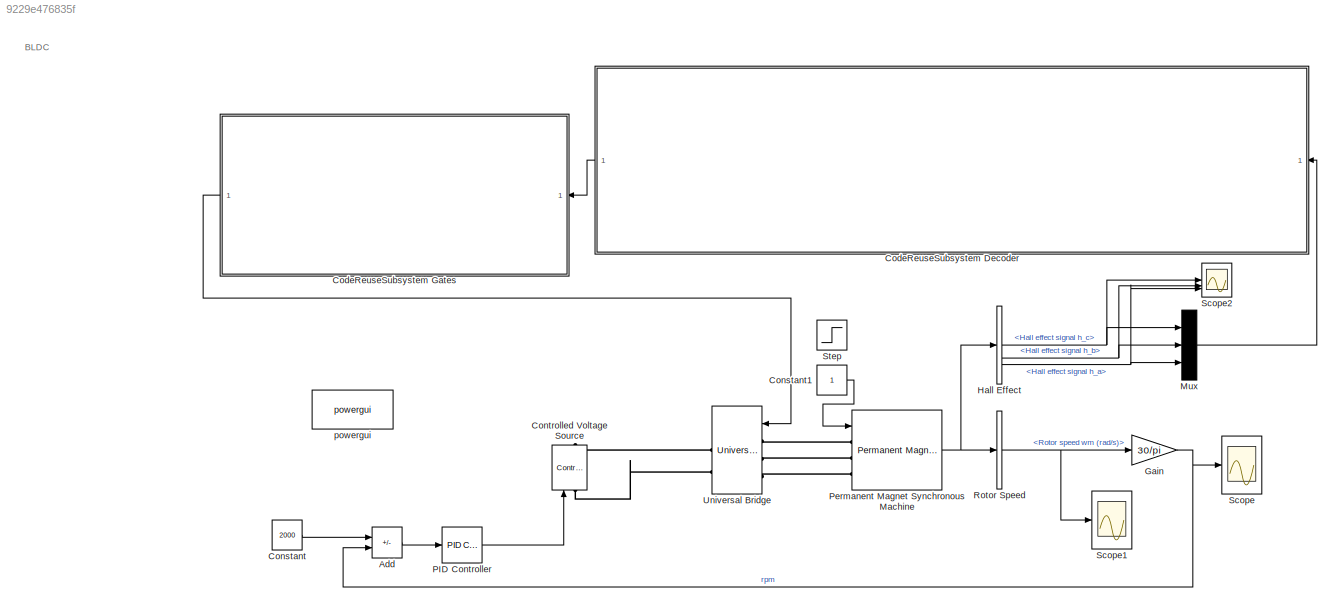
MODEL slx_9229e476835f
KIND model
CONFIG AbsTol = auto
CONFIG EnableMultiTasking = off
CONFIG FixedStep = auto
CONFIG MaxStep = auto
CONFIG MinStep = auto
CONFIG RelTol = 1e-3
CONFIG SampleTimeConstraint = Unconstrained
CONFIG SolverName = VariableStepAuto
CONFIG StartTime = 0.0
CONFIG StopTime = 1
BLOCK [Sum] Add
  IconShape = rectangular
  Inputs = +-
  NameLocation = top
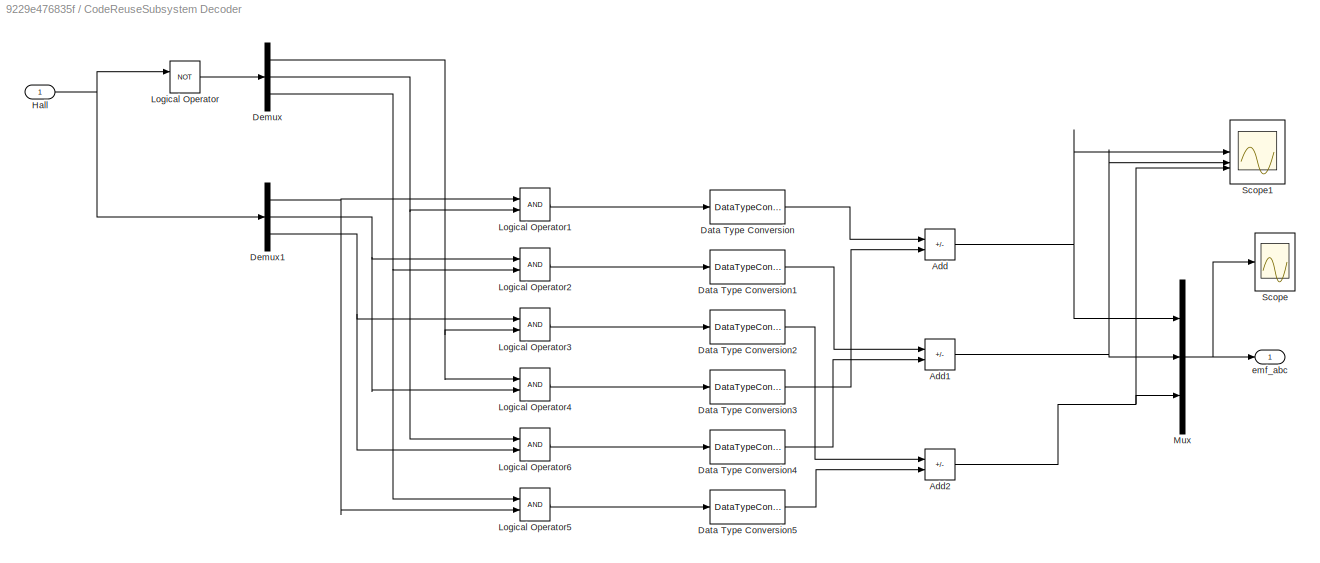
BLOCK [SubSystem] CodeReuseSubsystem Decoder
  NameLocation = top
  RTWFcnNameOpts = Use subsystem name
  RTWFileNameOpts = Use function name
  RTWSystemCode = Reusable function
  TreatAsAtomicUnit = on
BLOCK [Sum] CodeReuseSubsystem Decoder/Add
  IconShape = rectangular
  Inputs = +-
  NameLocation = top
BLOCK [Sum] CodeReuseSubsystem Decoder/Add1
  IconShape = rectangular
  Inputs = +-
BLOCK [Sum] CodeReuseSubsystem Decoder/Add2
  IconShape = rectangular
  Inputs = +-
BLOCK [DataTypeConversion] CodeReuseSubsystem Decoder/Data Type Conversion
  NameLocation = top
  RndMeth = Floor
  SaturateOnIntegerOverflow = off
BLOCK [DataTypeConversion] CodeReuseSubsystem Decoder/Data Type Conversion1
  RndMeth = Floor
  SaturateOnIntegerOverflow = off
BLOCK [DataTypeConversion] CodeReuseSubsystem Decoder/Data Type Conversion2
  RndMeth = Floor
  SaturateOnIntegerOverflow = off
BLOCK [DataTypeConversion] CodeReuseSubsystem Decoder/Data Type Conversion3
  RndMeth = Floor
  SaturateOnIntegerOverflow = off
BLOCK [DataTypeConversion] CodeReuseSubsystem Decoder/Data Type Conversion4
  RndMeth = Floor
  SaturateOnIntegerOverflow = off
BLOCK [DataTypeConversion] CodeReuseSubsystem Decoder/Data Type Conversion5
  RndMeth = Floor
  SaturateOnIntegerOverflow = off
BLOCK [Demux] CodeReuseSubsystem Decoder/Demux
  Outputs = 3
BLOCK [Demux] CodeReuseSubsystem Decoder/Demux1
  Outputs = 3
BLOCK [Inport] CodeReuseSubsystem Decoder/Hall
BLOCK [Logic] CodeReuseSubsystem Decoder/Logical Operator
  AllPortsSameDT = off
  Operator = NOT
  OutDataTypeStr = boolean
BLOCK [Logic] CodeReuseSubsystem Decoder/Logical Operator1
  AllPortsSameDT = off
  NameLocation = top
  OutDataTypeStr = boolean
BLOCK [Logic] CodeReuseSubsystem Decoder/Logical Operator2
  AllPortsSameDT = off
  OutDataTypeStr = boolean
BLOCK [Logic] CodeReuseSubsystem Decoder/Logical Operator3
  AllPortsSameDT = off
  OutDataTypeStr = boolean
BLOCK [Logic] CodeReuseSubsystem Decoder/Logical Operator4
  AllPortsSameDT = off
  OutDataTypeStr = boolean
BLOCK [Logic] CodeReuseSubsystem Decoder/Logical Operator5
  AllPortsSameDT = off
  OutDataTypeStr = boolean
BLOCK [Logic] CodeReuseSubsystem Decoder/Logical Operator6
  AllPortsSameDT = off
  OutDataTypeStr = boolean
BLOCK [Mux] CodeReuseSubsystem Decoder/Mux
  DisplayOption = bar
  Inputs = 3
BLOCK [Scope] CodeReuseSubsystem Decoder/Scope
  Floating = off
  NumInputPorts = 1
  ScopeSpecificationString = Simulink.scopes.TimeScopeBlockCfg('CurrentConfiguration', extmgr.ConfigurationSet(extmgr.Configuration('Core','General UI',true),extmgr.Configuration('Core','Source UI',true),extmgr.Configuration('Sources','WiredSimulink',true,'DataLoggingVariableName','ScopeData1'),extmgr.Configuration('Visuals','Time Domain',true,'SerializedDisplays',{struct('MinYLimReal','-1.25','MaxYLimReal','1.25','YLabelReal...<+2951ch>
BLOCK [Scope] CodeReuseSubsystem Decoder/Scope1
  Floating = off
  NumInputPorts = 3
  ScopeSpecificationString = Simulink.scopes.TimeScopeBlockCfg('CurrentConfiguration', extmgr.ConfigurationSet(extmgr.Configuration('Core','General UI',true),extmgr.Configuration('Core','Source UI',true),extmgr.Configuration('Sources','WiredSimulink',true,'DataLoggingVariableName','ScopeData2'),extmgr.Configuration('Visuals','Time Domain',true,'SerializedDisplays',{struct('MinYLimReal','-1.25','MaxYLimReal','1.25','YLabelReal...<+3027ch>
BLOCK [Outport] CodeReuseSubsystem Decoder/emf_abc
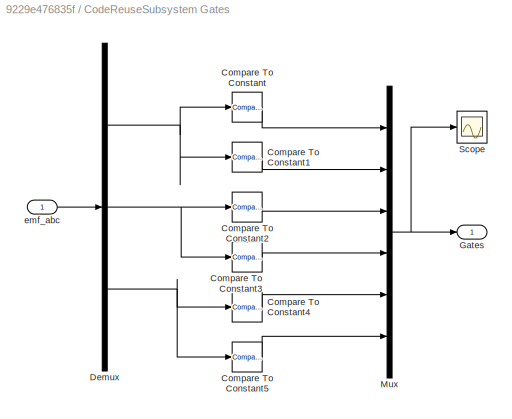
BLOCK [SubSystem] CodeReuseSubsystem Gates
  NameLocation = top
  RTWFcnNameOpts = Use subsystem name
  RTWFileNameOpts = Use function name
  RTWSystemCode = Reusable function
  TreatAsAtomicUnit = on
BLOCK [Reference] CodeReuseSubsystem Gates/Compare To Constant  REF=simulink/Logic and Bit
Operations/Compare
To Constant
  SourceBlock = simulink/Logic and Bit\nOperations/Compare\nTo Constant
  SourceType = Compare To Constant
BLOCK [Reference] CodeReuseSubsystem Gates/Compare To Constant1  REF=simulink/Logic and Bit
Operations/Compare
To Constant
  SourceBlock = simulink/Logic and Bit\nOperations/Compare\nTo Constant
  SourceType = Compare To Constant
BLOCK [Reference] CodeReuseSubsystem Gates/Compare To Constant2  REF=simulink/Logic and Bit
Operations/Compare
To Constant
  SourceBlock = simulink/Logic and Bit\nOperations/Compare\nTo Constant
  SourceType = Compare To Constant
BLOCK [Reference] CodeReuseSubsystem Gates/Compare To Constant3  REF=simulink/Logic and Bit
Operations/Compare
To Constant
  SourceBlock = simulink/Logic and Bit\nOperations/Compare\nTo Constant
  SourceType = Compare To Constant
BLOCK [Reference] CodeReuseSubsystem Gates/Compare To Constant4  REF=simulink/Logic and Bit
Operations/Compare
To Constant
  SourceBlock = simulink/Logic and Bit\nOperations/Compare\nTo Constant
  SourceType = Compare To Constant
BLOCK [Reference] CodeReuseSubsystem Gates/Compare To Constant5  REF=simulink/Logic and Bit
Operations/Compare
To Constant
  SourceBlock = simulink/Logic and Bit\nOperations/Compare\nTo Constant
  SourceType = Compare To Constant
BLOCK [Demux] CodeReuseSubsystem Gates/Demux
  Outputs = 3
BLOCK [Outport] CodeReuseSubsystem Gates/Gates
BLOCK [Mux] CodeReuseSubsystem Gates/Mux
  DisplayOption = bar
  Inputs = 6
BLOCK [Scope] CodeReuseSubsystem Gates/Scope
  Floating = off
  NumInputPorts = 1
  ScopeSpecificationString = Simulink.scopes.TimeScopeBlockCfg('CurrentConfiguration', extmgr.ConfigurationSet(extmgr.Configuration('Core','General UI',true),extmgr.Configuration('Core','Source UI',true),extmgr.Configuration('Sources','WiredSimulink',true,'DataLoggingVariableName','ScopeData3'),extmgr.Configuration('Visuals','Time Domain',true,'SerializedDisplays',{struct('MinYLimReal','-0.125','MaxYLimReal','1.125','YLabelRe...<+1602ch>
BLOCK [Inport] CodeReuseSubsystem Gates/emf_abc
BLOCK [Constant] Constant
  Value = 2000
BLOCK [Constant] Constant1
BLOCK [Reference] Controlled Voltage Source  REF=spsControlledVoltageSourceLib/Controlled Voltage Source
  LibrarySourceBlock = sps_lib/Sources/Controlled Voltage Source
  NameLocation = left
  SourceBlock = spsControlledVoltageSourceLib/Controlled Voltage Source
  SourceType = Controlled Voltage Source
BLOCK [Gain] Gain
  Gain = 30/pi
BLOCK [BusSelector] Hall Effect
  OutputSignals = Hall effect signal h_c,Hall effect signal h_b,Hall effect signal h_a
BLOCK [Mux] Mux
  DisplayOption = bar
  Inputs = 3
BLOCK [Reference] PID Controller  REF=slpidlib/PID Controller
  LibrarySourceBlock = simulink/Continuous/PID Controller
  NameLocation = top
  SourceBlock = slpidlib/PID Controller
  SourceType = PID 1dof
BLOCK [Reference] Permanent Magnet Synchronous Machine  REF=spsPermanentMagnetSynchronousMachineLib/Permanent Magnet
Synchronous Machine
  LibrarySourceBlock = sps_lib/Electrical Machines/Permanent Magnet\nSynchronous Machine
  SourceBlock = spsPermanentMagnetSynchronousMachineLib/Permanent Magnet\nSynchronous Machine
  SourceType = Permanent Magnet Synchronous Machine
BLOCK [BusSelector] Rotor Speed
  OutputSignals = Rotor speed wm (rad/s)
BLOCK [Scope] Scope
  Floating = off
  NumInputPorts = 1
  ScopeSpecificationString = Simulink.scopes.TimeScopeBlockCfg('CurrentConfiguration', extmgr.ConfigurationSet(extmgr.Configuration('Core','General UI',true),extmgr.Configuration('Core','Source UI',true),extmgr.Configuration('Sources','WiredSimulink',true),extmgr.Configuration('Visuals','Time Domain',true,'SerializedDisplays',{struct('MinYLimReal','-12645340247783790771064098368717884417867705131413890274987587819632866741850...<+2867ch>
BLOCK [Scope] Scope1
  Floating = off
  NumInputPorts = 1
  ScopeSpecificationString = Simulink.scopes.TimeScopeBlockCfg('CurrentConfiguration', extmgr.ConfigurationSet(extmgr.Configuration('Core','General UI',true),extmgr.Configuration('Core','Source UI',true),extmgr.Configuration('Sources','WiredSimulink',true,'DataLoggingVariableName','ScopeData4'),extmgr.Configuration('Visuals','Time Domain',true,'SerializedDisplays',{struct('MinYLimReal','-13242169341526963926074663247482989656...<+2923ch>
BLOCK [Scope] Scope2
  Floating = off
  NumInputPorts = 3
  ScopeSpecificationString = Simulink.scopes.TimeScopeBlockCfg('CurrentConfiguration', extmgr.ConfigurationSet(extmgr.Configuration('Core','General UI',true),extmgr.Configuration('Core','Source UI',true),extmgr.Configuration('Sources','WiredSimulink',true,'DataLoggingVariableName','ScopeData5'),extmgr.Configuration('Visuals','Time Domain',true,'SerializedDisplays',{struct('MinYLimReal','-0.125','MaxYLimReal','1.125','YLabelRe...<+2989ch>
BLOCK [Step] Step
  SampleTime = 0
BLOCK [Reference] Universal Bridge  REF=spsUniversalBridgeLib/Universal Bridge
  LibrarySourceBlock = sps_lib/Power Electronics/Universal Bridge
  SourceBlock = spsUniversalBridgeLib/Universal Bridge
  SourceType = Universal Bridge
BLOCK [Reference] powergui  REF=sps_lib/powergui
  LibrarySourceBlock = sps_lib/powergui
  Priority = 1
  SourceBlock = sps_lib/powergui
  SourceType = PSB option menu block
ANNOTATION (root): BLDC
LINE Add:1 -> PID Controller:1
NET CodeReuseSubsystem Decoder/Add1:1 -> CodeReuseSubsystem Decoder/Mux:2, CodeReuseSubsystem Decoder/Scope1:2
NET CodeReuseSubsystem Decoder/Add2:1 -> CodeReuseSubsystem Decoder/Mux:3, CodeReuseSubsystem Decoder/Scope1:3
NET CodeReuseSubsystem Decoder/Add:1 -> CodeReuseSubsystem Decoder/Mux:1, CodeReuseSubsystem Decoder/Scope1:1
LINE CodeReuseSubsystem Decoder/Data Type Conversion1:1 -> CodeReuseSubsystem Decoder/Add1:1
LINE CodeReuseSubsystem Decoder/Data Type Conversion2:1 -> CodeReuseSubsystem Decoder/Add2:1
LINE CodeReuseSubsystem Decoder/Data Type Conversion3:1 -> CodeReuseSubsystem Decoder/Add:2
LINE CodeReuseSubsystem Decoder/Data Type Conversion4:1 -> CodeReuseSubsystem Decoder/Add1:2
LINE CodeReuseSubsystem Decoder/Data Type Conversion5:1 -> CodeReuseSubsystem Decoder/Add2:2
LINE CodeReuseSubsystem Decoder/Data Type Conversion:1 -> CodeReuseSubsystem Decoder/Add:1
NET CodeReuseSubsystem Decoder/Demux1:1 -> CodeReuseSubsystem Decoder/Logical Operator1:1, CodeReuseSubsystem Decoder/Logical Operator5:2
NET CodeReuseSubsystem Decoder/Demux1:2 -> CodeReuseSubsystem Decoder/Logical Operator2:1, CodeReuseSubsystem Decoder/Logical Operator4:2
NET CodeReuseSubsystem Decoder/Demux1:3 -> CodeReuseSubsystem Decoder/Logical Operator3:1, CodeReuseSubsystem Decoder/Logical Operator6:2
NET CodeReuseSubsystem Decoder/Demux:1 -> CodeReuseSubsystem Decoder/Logical Operator3:2, CodeReuseSubsystem Decoder/Logical Operator4:1
NET CodeReuseSubsystem Decoder/Demux:2 -> CodeReuseSubsystem Decoder/Logical Operator1:2, CodeReuseSubsystem Decoder/Logical Operator6:1
NET CodeReuseSubsystem Decoder/Demux:3 -> CodeReuseSubsystem Decoder/Logical Operator2:2, CodeReuseSubsystem Decoder/Logical Operator5:1
NET CodeReuseSubsystem Decoder/Hall:1 -> CodeReuseSubsystem Decoder/Demux1:1, CodeReuseSubsystem Decoder/Logical Operator:1
LINE CodeReuseSubsystem Decoder/Logical Operator1:1 -> CodeReuseSubsystem Decoder/Data Type Conversion:1
LINE CodeReuseSubsystem Decoder/Logical Operator2:1 -> CodeReuseSubsystem Decoder/Data Type Conversion1:1
LINE CodeReuseSubsystem Decoder/Logical Operator3:1 -> CodeReuseSubsystem Decoder/Data Type Conversion2:1
LINE CodeReuseSubsystem Decoder/Logical Operator4:1 -> CodeReuseSubsystem Decoder/Data Type Conversion3:1
LINE CodeReuseSubsystem Decoder/Logical Operator5:1 -> CodeReuseSubsystem Decoder/Data Type Conversion5:1
LINE CodeReuseSubsystem Decoder/Logical Operator6:1 -> CodeReuseSubsystem Decoder/Data Type Conversion4:1
LINE CodeReuseSubsystem Decoder/Logical Operator:1 -> CodeReuseSubsystem Decoder/Demux:1
NET CodeReuseSubsystem Decoder/Mux:1 -> CodeReuseSubsystem Decoder/Scope:1, CodeReuseSubsystem Decoder/emf_abc:1
LINE CodeReuseSubsystem Decoder:1 -> CodeReuseSubsystem Gates:1
LINE CodeReuseSubsystem Gates/Compare To Constant1:1 -> CodeReuseSubsystem Gates/Mux:2
LINE CodeReuseSubsystem Gates/Compare To Constant2:1 -> CodeReuseSubsystem Gates/Mux:3
LINE CodeReuseSubsystem Gates/Compare To Constant3:1 -> CodeReuseSubsystem Gates/Mux:4
LINE CodeReuseSubsystem Gates/Compare To Constant4:1 -> CodeReuseSubsystem Gates/Mux:5
LINE CodeReuseSubsystem Gates/Compare To Constant5:1 -> CodeReuseSubsystem Gates/Mux:6
LINE CodeReuseSubsystem Gates/Compare To Constant:1 -> CodeReuseSubsystem Gates/Mux:1
NET CodeReuseSubsystem Gates/Demux:1 -> CodeReuseSubsystem Gates/Compare To Constant1:1, CodeReuseSubsystem Gates/Compare To Constant:1
NET CodeReuseSubsystem Gates/Demux:2 -> CodeReuseSubsystem Gates/Compare To Constant2:1, CodeReuseSubsystem Gates/Compare To Constant3:1
NET CodeReuseSubsystem Gates/Demux:3 -> CodeReuseSubsystem Gates/Compare To Constant4:1, CodeReuseSubsystem Gates/Compare To Constant5:1
NET CodeReuseSubsystem Gates/Mux:1 -> CodeReuseSubsystem Gates/Gates:1, CodeReuseSubsystem Gates/Scope:1
LINE CodeReuseSubsystem Gates/emf_abc:1 -> CodeReuseSubsystem Gates/Demux:1
LINE CodeReuseSubsystem Gates:1 -> Universal Bridge:1
LINE Constant1:1 -> Permanent Magnet Synchronous Machine:1
LINE Constant:1 -> Add:1
NET Gain:1 -> Add:2, Scope:1
NET Hall Effect:1 -> Mux:1, Scope2:1
NET Hall Effect:2 -> Mux:2, Scope2:2
NET Hall Effect:3 -> Mux:3, Scope2:3
LINE Mux:1 -> CodeReuseSubsystem Decoder:1
LINE PID Controller:1 -> Controlled Voltage Source:1
NET Permanent Magnet Synchronous Machine:1 -> Hall Effect:1, Rotor Speed:1
NET Rotor Speed:1 -> Gain:1, Scope1:1
PLINE Controlled Voltage Source:LConn1 -- Universal Bridge:RConn2
PLINE Controlled Voltage Source:RConn1 -- Universal Bridge:RConn1
PLINE Permanent Magnet Synchronous Machine:LConn1 -- Universal Bridge:LConn1
PLINE Permanent Magnet Synchronous Machine:LConn2 -- Universal Bridge:LConn2
PLINE Permanent Magnet Synchronous Machine:LConn3 -- Universal Bridge:LConn3
note: NET lines group one-source signal fan-out (src -> all destinations, sorted); 1:1 wires keep LINE
